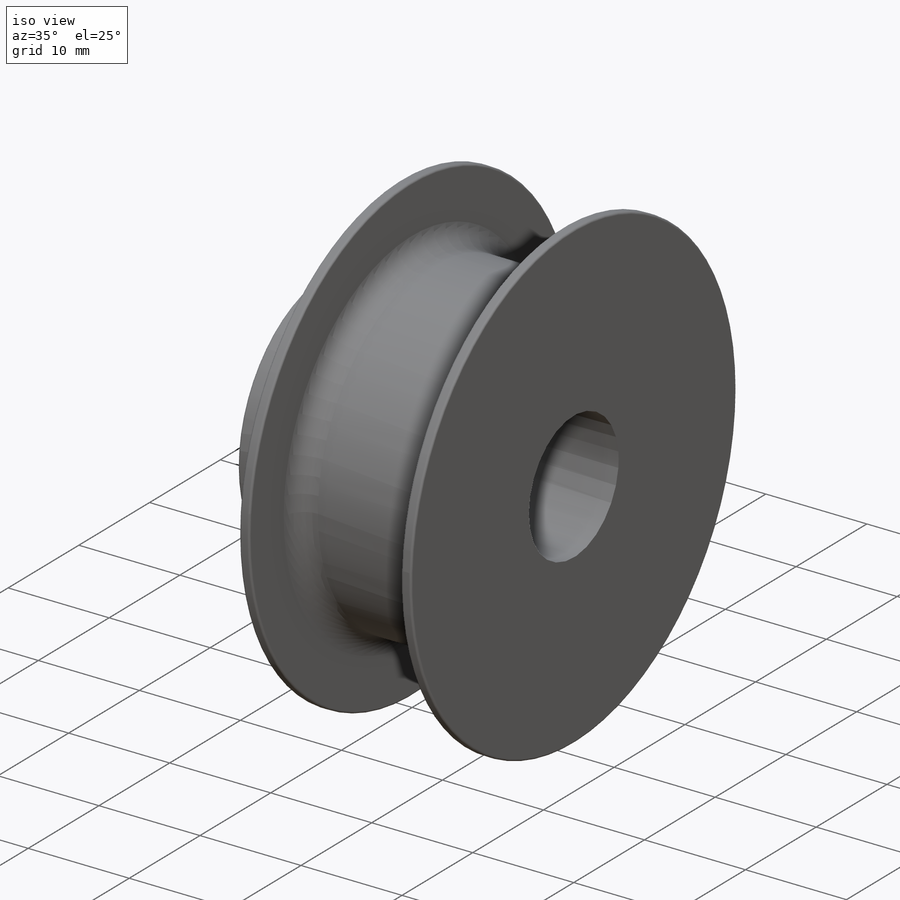
[diagram: iso view]
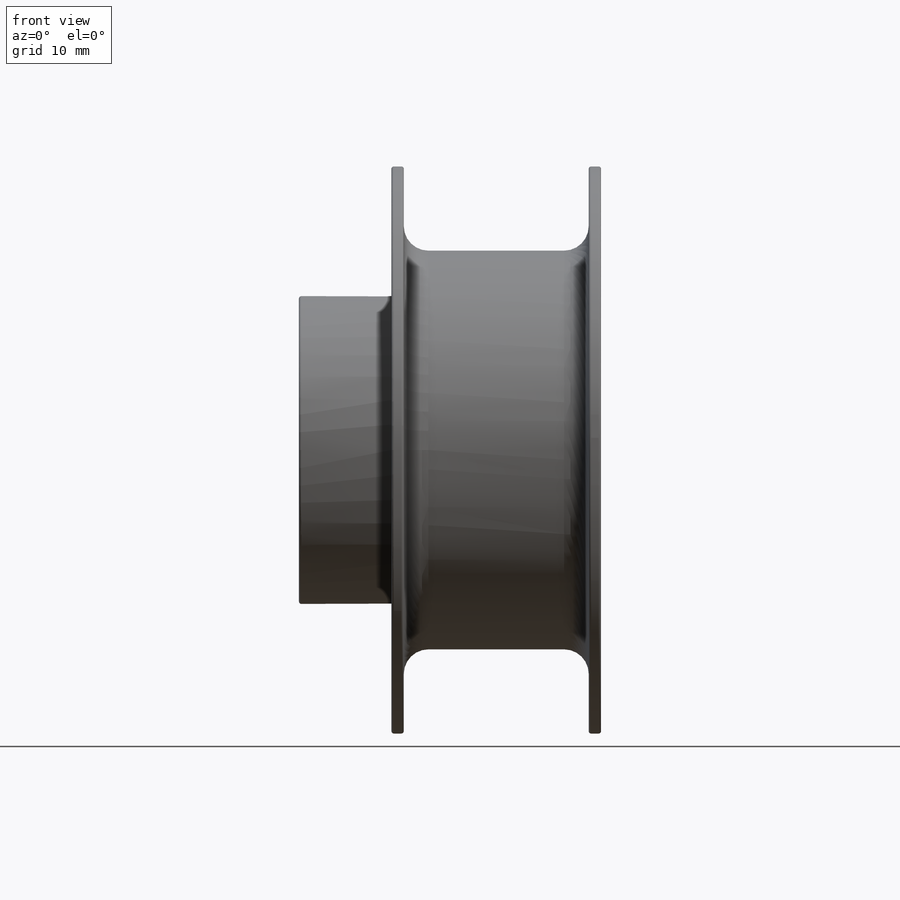
[diagram: front view]
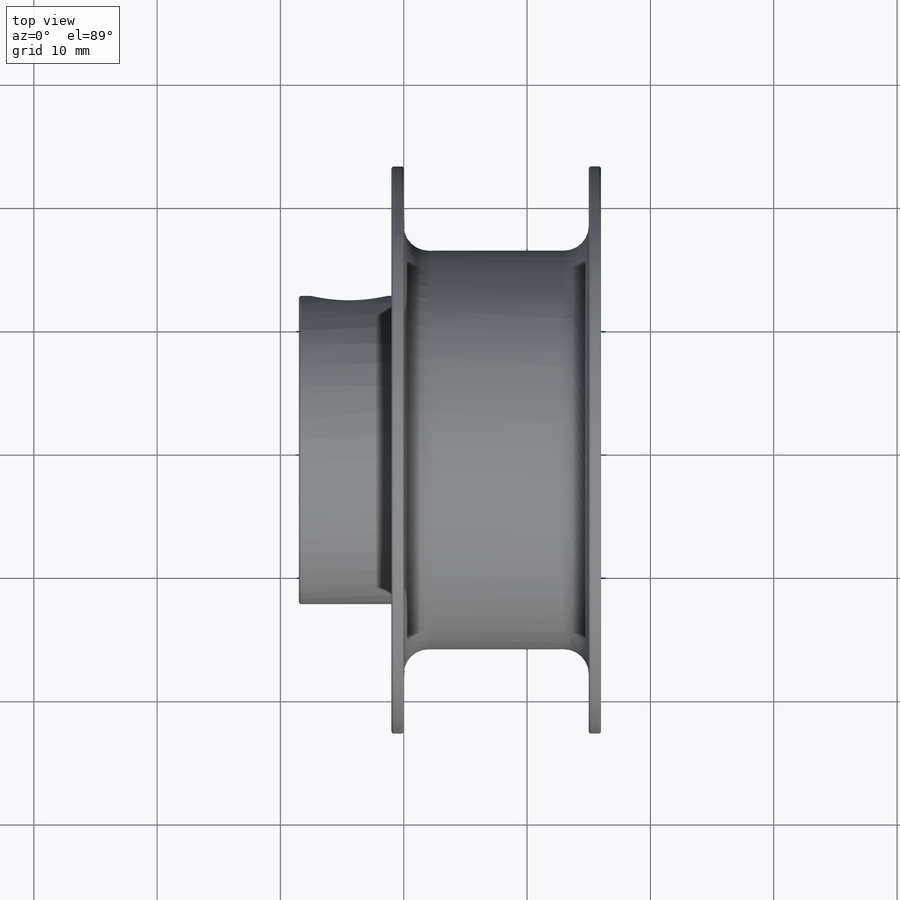
[diagram: top view]
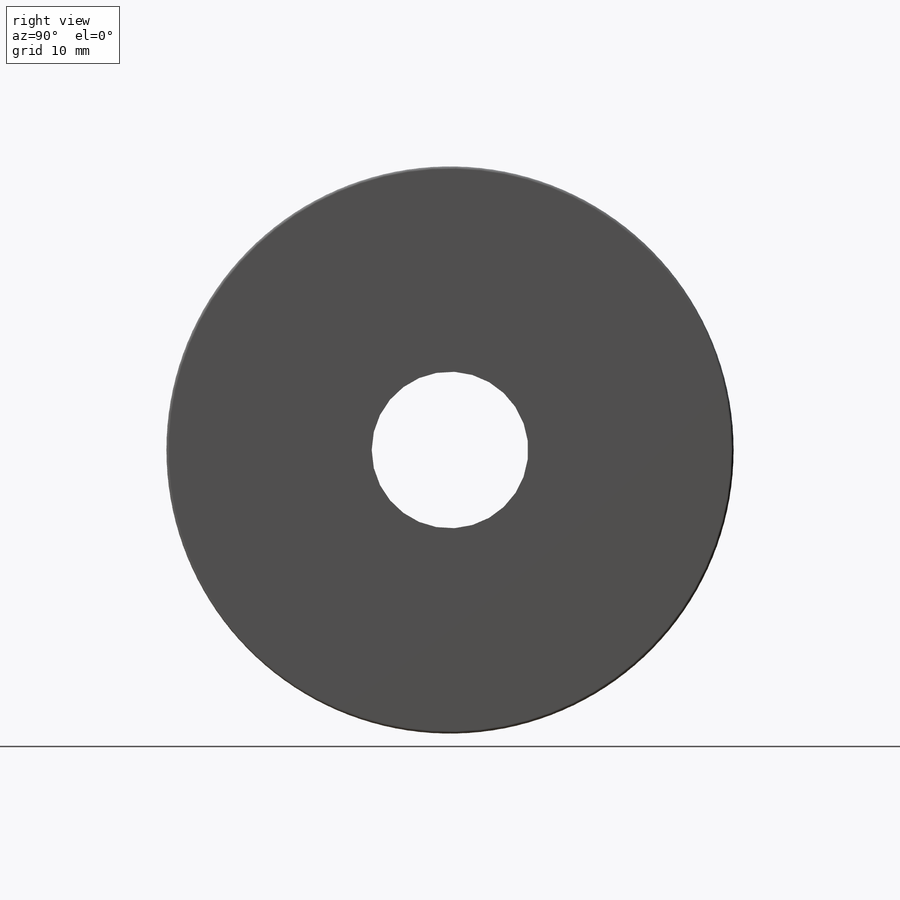
[diagram: right view]
SOLIDWORKS PART (.sldprt)
format: sldprt  version: not decoded by parser v0  size: 283,648 bytes
history: native  units: mm
features: sketch x5, extrude x4, fillet x3, material x1, cut_extrude x1 (+12 scaffold rows collapsed)
feature tree (26):
  scaffold x12  (default folders/planes/origin — collapsed)
  material  "Material <not specified>"
  sketch  "Sketch1"  dims[D1=~32.340312mm D2=~3.819747mm]
  extrude  "Boss-Extrude1"  Depth=15mm
  sketch  "Sketch2"  dims[D1=~22.82526mm]
  extrude  "Boss-Extrude2"  Depth=1mm
  sketch  "Sketch3"  dims[D1=25.4mm]
  extrude  "Boss-Extrude3"  Depth=1mm
  fillet  "Fillet1"  Radius=2mm
  fillet  "Fillet2"  Radius=0.2mm
  sketch  "Sketch4"  dims[D1=~11.720568mm]
  extrude  "Boss-Extrude4"  Depth=7.5mm
  sketch  "Sketch5"  dims[D1=~1.613947mm]
  cut_extrude  "Cut-Extrude1"  Depth=17.5mm
  fillet  "Fillet3"  Radius=0.2mm
decode coverage: 13 of 13 modeling features carry decoded parameters
note: ~ marks probable driven/reference dimensions
note: suppression state not decoded; provenance and decode notes live in map.json
